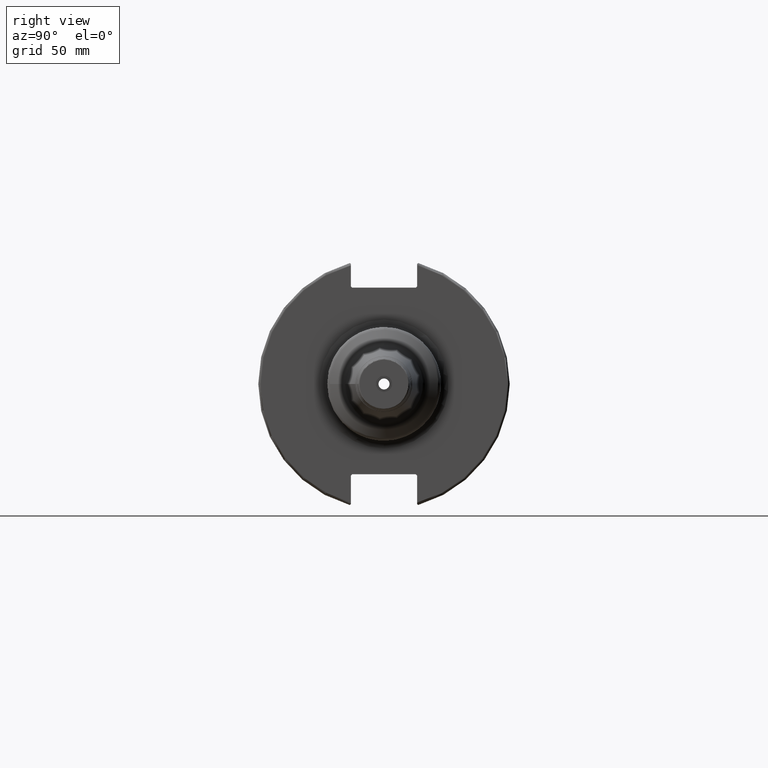
[diagram: clean part render]
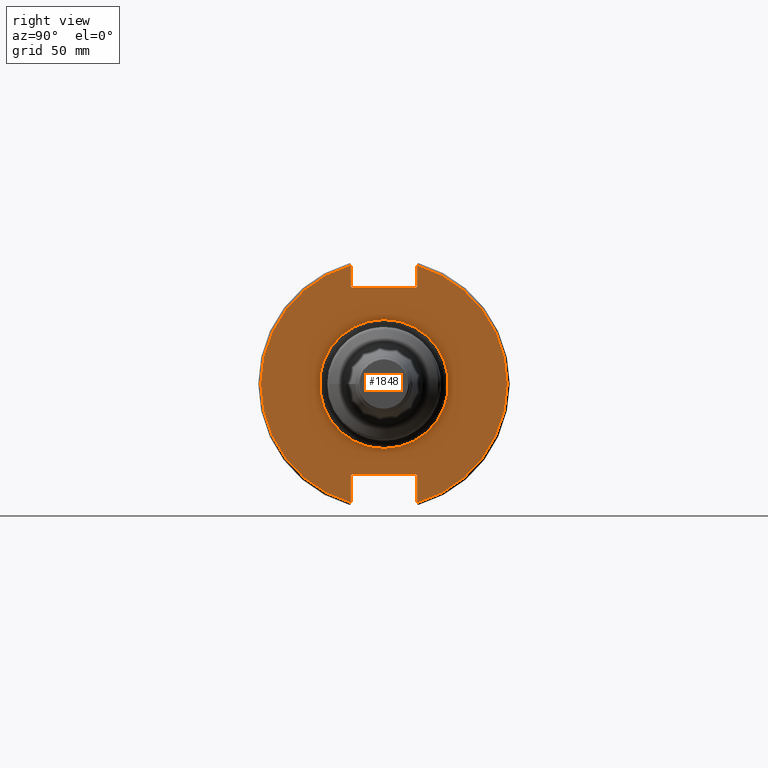
[diagram: same view with one face highlighted and labeled with its STEP entity id]
A machine part, right view. The second image highlights one B-rep face of the part: STEP entity #1848.
In plain terms, the highlighted planar face has unit normal (1, 0, 0).
Its self-contained STEP definition (entity closure, byte-faithful):
#36=PLANE('',#2041);
#94=FACE_BOUND('',#309,.T.);
#199=FACE_OUTER_BOUND('',#308,.T.);
#308=EDGE_LOOP('',(#1372,#1373,#1374,#1375,#1376,#1377,#1378,#1379,#1380,
#1381,#1382,#1383));
#309=EDGE_LOOP('',(#1384));
#416=LINE('',#2996,#519);
#417=LINE('',#2998,#520);
#418=LINE('',#3000,#521);
#419=LINE('',#3002,#522);
#420=LINE('',#3004,#523);
#421=LINE('',#3008,#524);
#422=LINE('',#3010,#525);
#423=LINE('',#3012,#526);
#424=LINE('',#3014,#527);
#425=LINE('',#3015,#528);
#519=VECTOR('',#2386,10.);
#520=VECTOR('',#2387,10.);
#521=VECTOR('',#2388,10.);
#522=VECTOR('',#2389,10.);
#523=VECTOR('',#2390,10.);
#524=VECTOR('',#2393,10.);
#525=VECTOR('',#2394,10.);
#526=VECTOR('',#2395,10.);
#527=VECTOR('',#2396,10.);
#528=VECTOR('',#2397,10.);
#671=CIRCLE('',#2040,25.25);
#672=CIRCLE('',#2042,48.2125);
#673=CIRCLE('',#2043,48.2125);
#789=VERTEX_POINT('',#2988);
#790=VERTEX_POINT('',#2992);
#791=VERTEX_POINT('',#2993);
#792=VERTEX_POINT('',#2995);
#793=VERTEX_POINT('',#2997);
#794=VERTEX_POINT('',#2999);
#795=VERTEX_POINT('',#3001);
#796=VERTEX_POINT('',#3003);
#797=VERTEX_POINT('',#3005);
#798=VERTEX_POINT('',#3007);
#799=VERTEX_POINT('',#3009);
#800=VERTEX_POINT('',#3011);
#801=VERTEX_POINT('',#3013);
#1008=EDGE_CURVE('',#789,#789,#671,.T.);
#1009=EDGE_CURVE('',#790,#791,#672,.T.);
#1010=EDGE_CURVE('',#790,#792,#416,.T.);
#1011=EDGE_CURVE('',#793,#792,#417,.T.);
#1012=EDGE_CURVE('',#793,#794,#418,.T.);
#1013=EDGE_CURVE('',#795,#794,#419,.T.);
#1014=EDGE_CURVE('',#795,#796,#420,.T.);
#1015=EDGE_CURVE('',#797,#796,#673,.T.);
#1016=EDGE_CURVE('',#797,#798,#421,.T.);
#1017=EDGE_CURVE('',#799,#798,#422,.T.);
#1018=EDGE_CURVE('',#799,#800,#423,.T.);
#1019=EDGE_CURVE('',#801,#800,#424,.T.);
#1020=EDGE_CURVE('',#801,#791,#425,.T.);
#1372=ORIENTED_EDGE('',*,*,#1009,.F.);
#1373=ORIENTED_EDGE('',*,*,#1010,.T.);
#1374=ORIENTED_EDGE('',*,*,#1011,.F.);
#1375=ORIENTED_EDGE('',*,*,#1012,.T.);
#1376=ORIENTED_EDGE('',*,*,#1013,.F.);
#1377=ORIENTED_EDGE('',*,*,#1014,.T.);
#1378=ORIENTED_EDGE('',*,*,#1015,.F.);
#1379=ORIENTED_EDGE('',*,*,#1016,.T.);
#1380=ORIENTED_EDGE('',*,*,#1017,.F.);
#1381=ORIENTED_EDGE('',*,*,#1018,.T.);
#1382=ORIENTED_EDGE('',*,*,#1019,.F.);
#1383=ORIENTED_EDGE('',*,*,#1020,.T.);
#1384=ORIENTED_EDGE('',*,*,#1008,.F.);
#1848=ADVANCED_FACE('',(#199,#94),#36,.T.);
#2040=AXIS2_PLACEMENT_3D('',#2990,#2380,#2381);
#2041=AXIS2_PLACEMENT_3D('',#2991,#2382,#2383);
#2042=AXIS2_PLACEMENT_3D('',#2994,#2384,#2385);
#2043=AXIS2_PLACEMENT_3D('',#3006,#2391,#2392);
#2380=DIRECTION('center_axis',(1.,0.,0.));
#2381=DIRECTION('ref_axis',(0.,-1.,-1.22464679914735E-16));
#2382=DIRECTION('center_axis',(1.,0.,0.));
#2383=DIRECTION('ref_axis',(0.,0.,-1.));
#2384=DIRECTION('center_axis',(-1.,0.,0.));
#2385=DIRECTION('ref_axis',(0.,1.,-6.12323399573677E-17));
#2386=DIRECTION('',(0.,0.,-1.));
#2387=DIRECTION('',(0.,0.707106781186549,0.707106781186546));
#2388=DIRECTION('',(0.,-1.,0.));
#2389=DIRECTION('',(0.,0.707106781186549,-0.707106781186546));
#2390=DIRECTION('',(0.,0.,1.));
#2391=DIRECTION('center_axis',(-1.,0.,0.));
#2392=DIRECTION('ref_axis',(0.,-1.,1.60812264967664E-16));
#2393=DIRECTION('',(0.,0.,1.));
#2394=DIRECTION('',(0.,-0.707106781186549,-0.707106781186546));
#2395=DIRECTION('',(0.,1.,0.));
#2396=DIRECTION('',(0.,-0.707106781186548,0.707106781186548));
#2397=DIRECTION('',(0.,0.,-1.));
#2988=CARTESIAN_POINT('',(19.05,-3.09223316784707E-15,-25.25));
#2990=CARTESIAN_POINT('Origin',(19.05,0.,0.));
#2991=CARTESIAN_POINT('Origin',(19.05,0.,0.));
#2992=CARTESIAN_POINT('',(19.05,12.95,46.4407434937254));
#2993=CARTESIAN_POINT('',(19.05,12.95,-46.4407434937254));
#2994=CARTESIAN_POINT('Origin',(19.05,0.,0.));
#2995=CARTESIAN_POINT('',(19.05,12.95,38.219));
#2996=CARTESIAN_POINT('',(19.05,12.95,18.8595));
#2997=CARTESIAN_POINT('',(19.05,12.45,37.719));
#2998=CARTESIAN_POINT('',(19.05,0.0327499999999836,25.30175));
#2999=CARTESIAN_POINT('',(19.05,-12.45,37.719));
#3000=CARTESIAN_POINT('',(19.05,0.,37.719));
#3001=CARTESIAN_POINT('',(19.05,-12.95,38.219));
#3002=CARTESIAN_POINT('',(19.05,-0.0327499999999817,25.30175));
#3003=CARTESIAN_POINT('',(19.05,-12.95,46.4407434937254));
#3004=CARTESIAN_POINT('',(19.05,-12.95,18.8595));
#3005=CARTESIAN_POINT('',(19.05,-12.95,-46.4407434937254));
#3006=CARTESIAN_POINT('Origin',(19.05,0.,0.));
#3007=CARTESIAN_POINT('',(19.05,-12.95,-35.806));
#3008=CARTESIAN_POINT('',(19.05,-12.95,-17.653));
#3009=CARTESIAN_POINT('',(19.05,-12.45,-35.306));
#3010=CARTESIAN_POINT('',(19.05,-0.635999999999989,-23.492));
#3011=CARTESIAN_POINT('',(19.05,12.45,-35.306));
#3012=CARTESIAN_POINT('',(19.05,-3.88578058618805E-15,-35.306));
#3013=CARTESIAN_POINT('',(19.05,12.95,-35.806));
#3014=CARTESIAN_POINT('',(19.05,0.635999999999995,-23.492));
#3015=CARTESIAN_POINT('',(19.05,12.95,-17.653));